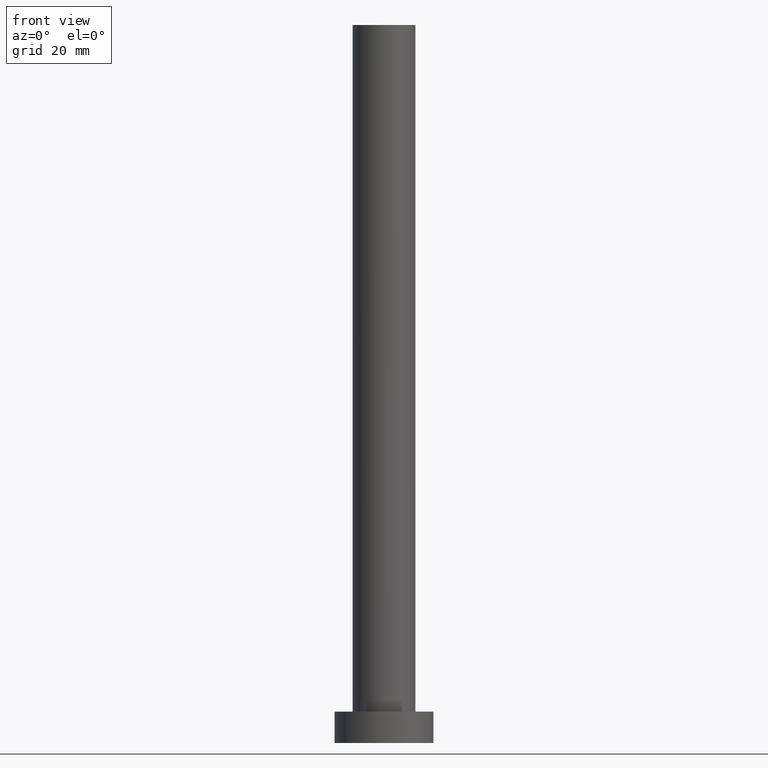
[diagram: clean part render]
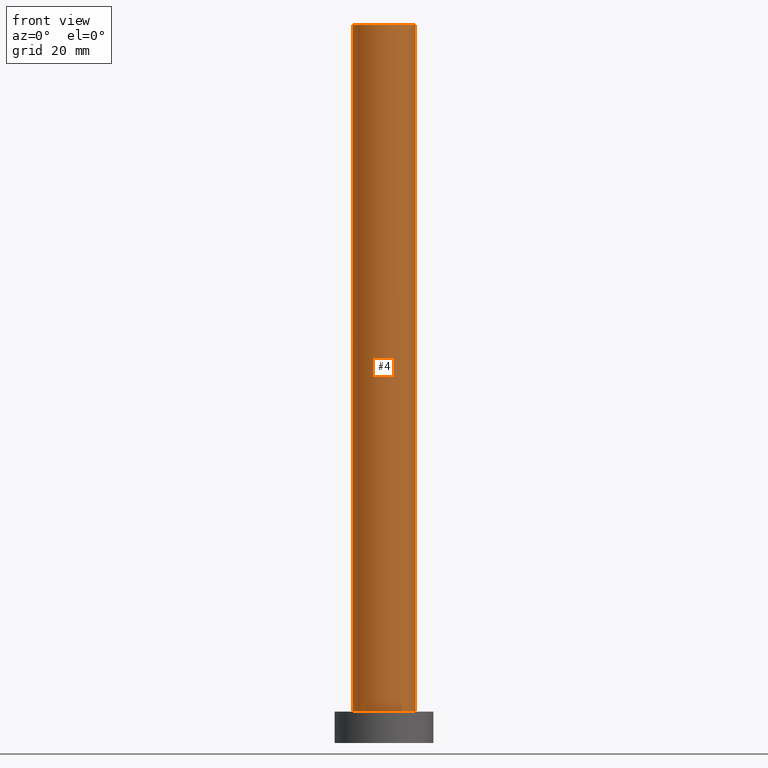
[diagram: same view with one face highlighted and labeled with its STEP entity id]
A machine part, front view. The second image highlights one B-rep face of the part: STEP entity #4.
In plain terms, the highlighted cylindrical surface (edge-blend (fillet) strip) has radius 7 mm, axis along (-0, -0, -1).
Its self-contained STEP definition (entity closure, byte-faithful):
#3 = VECTOR ( 'NONE', #16, 1000.000000000000000 ) ;
#4 = ADVANCED_FACE ( 'NONE', ( #176 ), #85, .T. ) ;
#7 = EDGE_LOOP ( 'NONE', ( #249, #191, #45, #226 ) ) ;
#12 = VERTEX_POINT ( 'NONE', #43 ) ;
#16 = DIRECTION ( 'NONE',  ( -0.000000000000000000, -0.000000000000000000, -1.000000000000000000 ) ) ;
#25 = VERTEX_POINT ( 'NONE', #214 ) ;
#29 = EDGE_CURVE ( 'NONE', #88, #229, #158, .T. ) ;
#39 = CARTESIAN_POINT ( 'NONE',  ( 0.000000000000000000, 0.000000000000000000, 160.0000000000000000 ) ) ;
#43 = CARTESIAN_POINT ( 'NONE',  ( 7.000000000000000888, 8.572527594031474176E-16, 7.000000000000000000 ) ) ;
#45 = ORIENTED_EDGE ( 'NONE', *, *, #55, .T. ) ;
#49 = LINE ( 'NONE', #160, #86 ) ;
#50 = AXIS2_PLACEMENT_3D ( 'NONE', #39, #123, #228 ) ;
#52 = DIRECTION ( 'NONE',  ( 0.000000000000000000, 0.000000000000000000, 1.000000000000000000 ) ) ;
#53 = CARTESIAN_POINT ( 'NONE',  ( 7.000000000000000888, 8.572527594031474176E-16, 160.0000000000000000 ) ) ;
#55 = EDGE_CURVE ( 'NONE', #88, #25, #73, .T. ) ;
#73 = LINE ( 'NONE', #75, #3 ) ;
#75 = CARTESIAN_POINT ( 'NONE',  ( -7.000000000000000888, 0.000000000000000000, 160.0000000000000000 ) ) ;
#77 = DIRECTION ( 'NONE',  ( 1.000000000000000000, 0.000000000000000000, 0.000000000000000000 ) ) ;
#81 = EDGE_CURVE ( 'NONE', #229, #12, #49, .T. ) ;
#85 = CYLINDRICAL_SURFACE ( 'NONE', #50, 7.000000000000000888 ) ;
#86 = VECTOR ( 'NONE', #194, 1000.000000000000000 ) ;
#88 = VERTEX_POINT ( 'NONE', #232 ) ;
#89 = CARTESIAN_POINT ( 'NONE',  ( 0.000000000000000000, 0.000000000000000000, 160.0000000000000000 ) ) ;
#94 = DIRECTION ( 'NONE',  ( 0.000000000000000000, 0.000000000000000000, 1.000000000000000000 ) ) ;
#113 = AXIS2_PLACEMENT_3D ( 'NONE', #237, #52, #153 ) ;
#123 = DIRECTION ( 'NONE',  ( -0.000000000000000000, -0.000000000000000000, -1.000000000000000000 ) ) ;
#148 = EDGE_CURVE ( 'NONE', #25, #12, #163, .T. ) ;
#152 = AXIS2_PLACEMENT_3D ( 'NONE', #89, #94, #77 ) ;
#153 = DIRECTION ( 'NONE',  ( 1.000000000000000000, 0.000000000000000000, 0.000000000000000000 ) ) ;
#158 = CIRCLE ( 'NONE', #152, 7.000000000000000888 ) ;
#160 = CARTESIAN_POINT ( 'NONE',  ( 7.000000000000000888, 8.572527594031474176E-16, 160.0000000000000000 ) ) ;
#163 = CIRCLE ( 'NONE', #113, 7.000000000000000888 ) ;
#176 = FACE_OUTER_BOUND ( 'NONE', #7, .T. ) ;
#191 = ORIENTED_EDGE ( 'NONE', *, *, #29, .F. ) ;
#194 = DIRECTION ( 'NONE',  ( -0.000000000000000000, -0.000000000000000000, -1.000000000000000000 ) ) ;
#214 = CARTESIAN_POINT ( 'NONE',  ( -7.000000000000000888, 0.000000000000000000, 7.000000000000000000 ) ) ;
#226 = ORIENTED_EDGE ( 'NONE', *, *, #148, .T. ) ;
#228 = DIRECTION ( 'NONE',  ( -1.000000000000000000, 0.000000000000000000, 0.000000000000000000 ) ) ;
#229 = VERTEX_POINT ( 'NONE', #53 ) ;
#232 = CARTESIAN_POINT ( 'NONE',  ( -7.000000000000000888, 0.000000000000000000, 160.0000000000000000 ) ) ;
#237 = CARTESIAN_POINT ( 'NONE',  ( 0.000000000000000000, 0.000000000000000000, 7.000000000000000000 ) ) ;
#249 = ORIENTED_EDGE ( 'NONE', *, *, #81, .F. ) ;